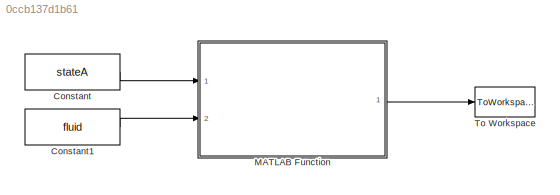
MODEL slx_0ccb137d1b61
KIND model
BLOCK [Constant] Constant
  OutDataTypeStr = Bus: stateAbus
  Value = stateA
BLOCK [Constant] Constant1
  OutDataTypeStr = Bus: fluidBus
  Value = fluid
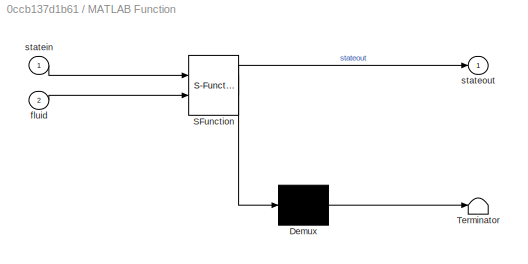
BLOCK [SubSystem] MATLAB Function
  ErrorFcn = Stateflow.Translate.translate
  PermitHierarchicalResolution = ExplicitOnly
  Ports = [2, 1]
  RequestExecContextInheritance = off
  SFBlockType = MATLAB Function
  TreatAsAtomicUnit = on
BLOCK [Demux] MATLAB Function/ Demux 
  Outputs = 1
  Ports = [1, 1]
BLOCK [S-Function] MATLAB Function/ SFunction 
  EnableBusSupport = on
  FunctionName = sf_sfun
  PortCounts = [2 2]
  Ports = [2, 2]
  Tag = Stateflow S-Function update 2
BLOCK [Terminator] MATLAB Function/ Terminator 
BLOCK [Inport] MATLAB Function/fluid
  IconDisplay = Port number
  Port = 2
BLOCK [Inport] MATLAB Function/statein
  IconDisplay = Port number
BLOCK [Outport] MATLAB Function/stateout
  IconDisplay = Port number
BLOCK [ToWorkspace] To Workspace
  FixptAsFi = on
  MaxDataPoints = inf
  Ports = [1]
  SampleTime = -1
  Save2DSignal = 3-D array (concatenate along third dimension)
  SaveFormat = Timeseries
  VariableName = stateB
LINE Constant1:1 -> MATLAB Function:2
LINE Constant:1 -> MATLAB Function:1
LINE MATLAB Function:1 -> To Workspace:1
CHART MATLAB Function states=1 transitions=1
  STATE_LABEL 'eML_blk_kernel()'
  STATE_LABEL 'SCRIPT:\nfunction stateout = update(statein,fluid)\n%#codegen\nstateout=statein;\n% fluid=stateout.fluid;\n%Check Dimensions\nif stateout.dimensions == 1\n    h=stateout.enthalpy./stateout.mass;\nelse\n    h=stateout.specificenthalpy;\nend\n%Check for Phase Change Fluid\nif stateout.phases == 2\n    p=stateout.pressure;\n    stateout.temperature=interp2DUG(fluid.PP,fluid.HH,fluid.T_P_H,p,h);\n    stateout.densit...<+315ch>'
